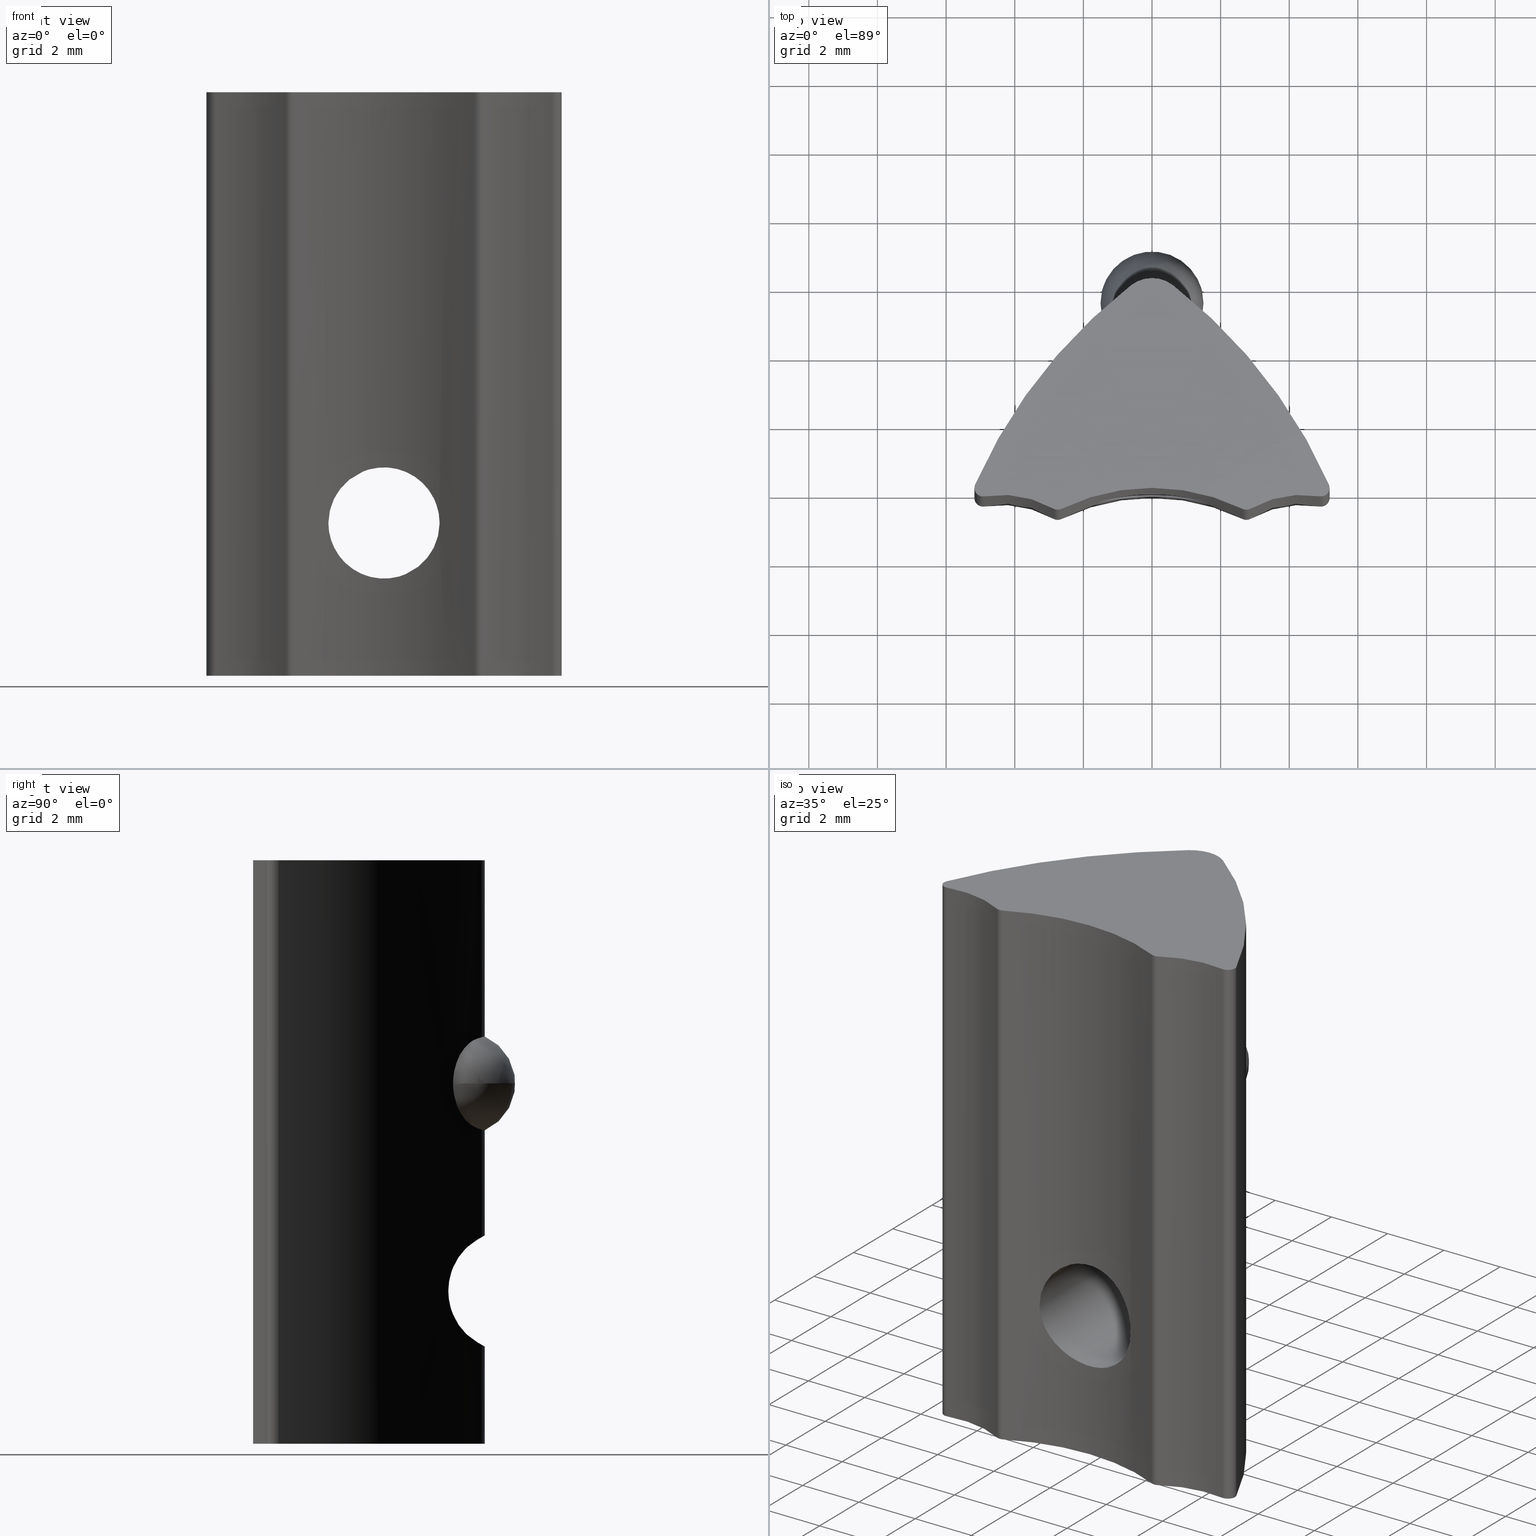
[diagram: canonical four-view strip — front | top / right | iso, engineering-drawing reading convention]
A machine part, canonical four-view strip (front | top / right | iso — engineering-drawing reading convention). The complete STEP part file that produces these views, byte-faithful:
ISO-10303-21;
HEADER;
/* Generated by software containing ST-Developer
 * from STEP Tools, Inc. (www.steptools.com) 
 */

FILE_DESCRIPTION(
/* description */ ('CURSORE M4 17X10 CAVA6 CULLA CON SFERETTA'),
/* implementation_level */ '2;1');

FILE_NAME(
/* name */ 
'C:\\Users\\tecnico7\\Desktop\\NUOVI DISEGNI 3D\\CDDCU0000055.stp',
/* time_stamp */ '2022-11-28T09:18:04+01:00',
/* author */ ('tecnico7'),
/* organization */ (''),
/* preprocessor_version */ 'ST-DEVELOPER v18.1',
/* originating_system */ 'Autodesk Inventor 2022',
/* authorisation */ '');

FILE_SCHEMA (('AUTOMOTIVE_DESIGN { 1 0 10303 214 3 1 1 }'));
ENDSEC;

DATA;
#10=MECHANICAL_DESIGN_GEOMETRIC_PRESENTATION_REPRESENTATION('',(#312,#313),
#732);
#11=SHAPE_REPRESENTATION_RELATIONSHIP('SRR','None',#739,#12);
#12=ADVANCED_BREP_SHAPE_REPRESENTATION('',(#13),#731);
#13=MANIFOLD_SOLID_BREP('Solido1',#330);
#14=PLANE('',#388);
#15=PLANE('',#389);
#16=LINE('',#549,#31);
#17=LINE('',#573,#32);
#18=LINE('',#577,#33);
#19=LINE('',#580,#34);
#20=LINE('',#583,#35);
#21=LINE('',#610,#36);
#22=LINE('',#676,#37);
#23=LINE('',#680,#38);
#24=LINE('',#683,#39);
#25=LINE('',#693,#40);
#26=LINE('',#696,#41);
#27=LINE('',#702,#42);
#28=LINE('',#711,#43);
#29=LINE('',#717,#44);
#30=LINE('',#723,#45);
#31=VECTOR('',#398,10.);
#32=VECTOR('',#399,10.);
#33=VECTOR('',#402,10.);
#34=VECTOR('',#405,10.);
#35=VECTOR('',#408,10.);
#36=VECTOR('',#411,1.621);
#37=VECTOR('',#414,10.);
#38=VECTOR('',#417,10.);
#39=VECTOR('',#420,10.);
#40=VECTOR('',#433,10.);
#41=VECTOR('',#436,10.);
#42=VECTOR('',#443,10.);
#43=VECTOR('',#456,10.);
#44=VECTOR('',#463,10.);
#45=VECTOR('',#470,10.);
#46=CYLINDRICAL_SURFACE('',#355,15.);
#47=CYLINDRICAL_SURFACE('',#358,1.);
#48=CYLINDRICAL_SURFACE('',#359,1.621);
#49=CYLINDRICAL_SURFACE('',#360,15.);
#50=CYLINDRICAL_SURFACE('',#363,1.);
#51=CYLINDRICAL_SURFACE('',#365,1.);
#52=CYLINDRICAL_SURFACE('',#367,0.25);
#53=CYLINDRICAL_SURFACE('',#370,3.);
#54=CYLINDRICAL_SURFACE('',#373,0.25);
#55=CYLINDRICAL_SURFACE('',#376,0.25);
#56=CYLINDRICAL_SURFACE('',#379,3.);
#57=CYLINDRICAL_SURFACE('',#382,0.25);
#58=CYLINDRICAL_SURFACE('',#385,6.);
#59=FACE_BOUND('',#91,.T.);
#60=FACE_BOUND('',#105,.T.);
#61=B_SPLINE_CURVE_WITH_KNOTS('',3,(#488,#489,#490,#491,#492,#493,#494,
#495,#496,#497,#498,#499,#500,#501,#502,#503,#504,#505),.UNSPECIFIED.,.F.,
 .F.,(4,2,2,2,2,2,2,2,4),(0.224927419825382,0.268885237807746,0.310193641972786,
0.356110090594978,0.402026539217171,0.447942987839363,0.493859436461555,
0.535167840626594,0.579125658608959),.UNSPECIFIED.);
#62=B_SPLINE_CURVE_WITH_KNOTS('',3,(#507,#508,#509,#510,#511,#512,#513,
#514,#515,#516),.UNSPECIFIED.,.F.,.F.,(4,2,2,2,4),(0.184780951995085,0.197914113345664,
0.236162461852627,0.273970569130265,0.311778676407902),.UNSPECIFIED.);
#63=B_SPLINE_CURVE_WITH_KNOTS('',3,(#518,#519,#520,#521,#522,#523,#524,
#525,#526,#527,#528,#529,#530,#531,#532,#533,#534,#535,#536),
 .UNSPECIFIED.,.F.,.F.,(4,2,2,2,3,2,2,2,4),(-0.177099119391789,-0.133141301409424,
-0.0918328972443856,-0.0459164486221928,0.,0.045916448622193,0.091832897244386,
0.133141301409424,0.177099119391789),.UNSPECIFIED.);
#64=B_SPLINE_CURVE_WITH_KNOTS('',3,(#537,#538,#539,#540,#541,#542,#543,
#544,#545,#546),.UNSPECIFIED.,.F.,.F.,(4,2,2,2,4),(0.314556690148757,0.352364797426395,
0.390172904704032,0.428421253210995,0.441554414561574),.UNSPECIFIED.);
#65=B_SPLINE_CURVE_WITH_KNOTS('',3,(#551,#552,#553,#554,#555,#556,#557,
#558,#559,#560,#561,#562,#563,#564,#565,#566,#567,#568,#569,#570,#571),
 .UNSPECIFIED.,.F.,.F.,(4,2,2,2,3,2,2,2,2,4),(-0.205344797727796,-0.200723709947894,
-0.122364503423857,-0.0611822517119287,0.,0.0328929540431599,0.0657859080863197,
0.131571816172639,0.205415509235039,0.205763545672511),.UNSPECIFIED.);
#66=B_SPLINE_CURVE_WITH_KNOTS('',3,(#585,#586,#587,#588,#589,#590),
 .UNSPECIFIED.,.F.,.F.,(4,2,4),(0.0912880722624588,0.116987272487438,0.155790089731869),
 .UNSPECIFIED.);
#67=B_SPLINE_CURVE_WITH_KNOTS('',3,(#591,#592,#593,#594,#595,#596),
 .UNSPECIFIED.,.F.,.F.,(4,2,4),(0.155790089731869,0.1945929069763,0.220292107201279),
 .UNSPECIFIED.);
#68=B_SPLINE_CURVE_WITH_KNOTS('',3,(#599,#600,#601,#602,#603,#604,#605,
#606,#607,#608),.UNSPECIFIED.,.F.,.F.,(4,2,2,2,4),(0.545481501043431,0.60666375275536,
0.667846004467288,0.746205210991325,0.750826298771228),.UNSPECIFIED.);
#69=B_SPLINE_CURVE_WITH_KNOTS('',3,(#612,#613,#614,#615,#616,#617,#618,
#619,#620,#621,#622,#623,#624,#625,#626,#627,#628,#629),.UNSPECIFIED.,.F.,
 .F.,(4,2,2,2,2,2,2,2,4),(0.,0.0613970513798135,0.122794102759627,0.184179325210304,
0.245564547660981,0.306949770111658,0.368334992562336,0.429732043942149,
0.491129095321963),.UNSPECIFIED.);
#70=B_SPLINE_CURVE_WITH_KNOTS('',3,(#630,#631,#632,#633,#634,#635,#636,
#637,#638,#639,#640,#641,#642,#643,#644,#645,#646,#647),.UNSPECIFIED.,.F.,
 .F.,(4,2,2,2,2,2,2,2,4),(0.491129095321963,0.552526146701776,0.61392319808159,
0.675308420532267,0.736693642982944,0.798078865433621,0.859464087884298,
0.920861139264112,0.982258190643925),.UNSPECIFIED.);
#71=B_SPLINE_CURVE_WITH_KNOTS('',3,(#649,#650,#651,#652,#653,#654,#655,
#656,#657,#658,#659,#660),.UNSPECIFIED.,.F.,.F.,(4,2,2,2,2,4),(0.33971795537092,
0.340065991808392,0.413909684870792,0.479695592957111,0.512588547000271,
0.545481501043431),.UNSPECIFIED.);
#72=B_SPLINE_CURVE_WITH_KNOTS('',3,(#662,#663,#664,#665,#666,#667),
 .UNSPECIFIED.,.F.,.F.,(4,2,4),(0.467370269195606,0.506173086440037,0.531872286665016),
 .UNSPECIFIED.);
#73=B_SPLINE_CURVE_WITH_KNOTS('',3,(#668,#669,#670,#671,#672,#673),
 .UNSPECIFIED.,.F.,.F.,(4,2,4),(0.402868251726196,0.428567451951175,0.467370269195606),
 .UNSPECIFIED.);
#74=FACE_OUTER_BOUND('',#90,.T.);
#75=FACE_OUTER_BOUND('',#92,.T.);
#76=FACE_OUTER_BOUND('',#93,.T.);
#77=FACE_OUTER_BOUND('',#94,.T.);
#78=FACE_OUTER_BOUND('',#95,.T.);
#79=FACE_OUTER_BOUND('',#96,.T.);
#80=FACE_OUTER_BOUND('',#97,.T.);
#81=FACE_OUTER_BOUND('',#98,.T.);
#82=FACE_OUTER_BOUND('',#99,.T.);
#83=FACE_OUTER_BOUND('',#100,.T.);
#84=FACE_OUTER_BOUND('',#101,.T.);
#85=FACE_OUTER_BOUND('',#102,.T.);
#86=FACE_OUTER_BOUND('',#103,.T.);
#87=FACE_OUTER_BOUND('',#104,.T.);
#88=FACE_OUTER_BOUND('',#106,.T.);
#89=FACE_OUTER_BOUND('',#107,.T.);
#90=EDGE_LOOP('',(#213,#214));
#91=EDGE_LOOP('',(#215,#216,#217,#218));
#92=EDGE_LOOP('',(#219,#220,#221,#222,#223,#224,#225,#226));
#93=EDGE_LOOP('',(#227,#228,#229,#230,#231));
#94=EDGE_LOOP('',(#232,#233,#234,#235,#236,#237,#238,#239,#240,#241,#242));
#95=EDGE_LOOP('',(#243,#244,#245,#246,#247,#248,#249,#250,#251));
#96=EDGE_LOOP('',(#252,#253,#254,#255));
#97=EDGE_LOOP('',(#256,#257,#258,#259,#260));
#98=EDGE_LOOP('',(#261,#262,#263,#264));
#99=EDGE_LOOP('',(#265,#266,#267,#268));
#100=EDGE_LOOP('',(#269,#270,#271,#272));
#101=EDGE_LOOP('',(#273,#274,#275,#276));
#102=EDGE_LOOP('',(#277,#278,#279,#280));
#103=EDGE_LOOP('',(#281,#282,#283,#284));
#104=EDGE_LOOP('',(#285,#286,#287,#288));
#105=EDGE_LOOP('',(#289,#290));
#106=EDGE_LOOP('',(#291,#292,#293,#294,#295,#296,#297,#298,#299,#300));
#107=EDGE_LOOP('',(#301,#302,#303,#304,#305,#306,#307,#308,#309,#310));
#108=CIRCLE('',#354,1.5);
#109=CIRCLE('',#356,15.);
#110=CIRCLE('',#357,15.);
#111=CIRCLE('',#361,15.);
#112=CIRCLE('',#362,15.);
#113=CIRCLE('',#364,1.);
#114=CIRCLE('',#366,1.);
#115=CIRCLE('',#368,0.25);
#116=CIRCLE('',#369,0.25);
#117=CIRCLE('',#371,3.);
#118=CIRCLE('',#372,3.);
#119=CIRCLE('',#374,0.25);
#120=CIRCLE('',#375,0.25);
#121=CIRCLE('',#377,0.25);
#122=CIRCLE('',#378,0.25);
#123=CIRCLE('',#380,3.);
#124=CIRCLE('',#381,3.);
#125=CIRCLE('',#383,0.25);
#126=CIRCLE('',#384,0.25);
#127=CIRCLE('',#386,6.);
#128=CIRCLE('',#387,6.);
#129=VERTEX_POINT('',#483);
#130=VERTEX_POINT('',#484);
#131=VERTEX_POINT('',#486);
#132=VERTEX_POINT('',#487);
#133=VERTEX_POINT('',#506);
#134=VERTEX_POINT('',#517);
#135=VERTEX_POINT('',#548);
#136=VERTEX_POINT('',#550);
#137=VERTEX_POINT('',#572);
#138=VERTEX_POINT('',#574);
#139=VERTEX_POINT('',#576);
#140=VERTEX_POINT('',#578);
#141=VERTEX_POINT('',#582);
#142=VERTEX_POINT('',#584);
#143=VERTEX_POINT('',#598);
#144=VERTEX_POINT('',#609);
#145=VERTEX_POINT('',#611);
#146=VERTEX_POINT('',#648);
#147=VERTEX_POINT('',#661);
#148=VERTEX_POINT('',#675);
#149=VERTEX_POINT('',#677);
#150=VERTEX_POINT('',#679);
#151=VERTEX_POINT('',#681);
#152=VERTEX_POINT('',#689);
#153=VERTEX_POINT('',#690);
#154=VERTEX_POINT('',#692);
#155=VERTEX_POINT('',#694);
#156=VERTEX_POINT('',#698);
#157=VERTEX_POINT('',#700);
#158=VERTEX_POINT('',#707);
#159=VERTEX_POINT('',#709);
#160=VERTEX_POINT('',#713);
#161=VERTEX_POINT('',#715);
#162=VERTEX_POINT('',#719);
#163=VERTEX_POINT('',#721);
#164=EDGE_CURVE('',#129,#130,#108,.T.);
#165=EDGE_CURVE('',#131,#132,#61,.T.);
#166=EDGE_CURVE('',#133,#131,#62,.T.);
#167=EDGE_CURVE('',#134,#133,#63,.T.);
#168=EDGE_CURVE('',#132,#134,#64,.T.);
#169=EDGE_CURVE('',#135,#133,#16,.T.);
#170=EDGE_CURVE('',#135,#136,#65,.T.);
#171=EDGE_CURVE('',#137,#136,#17,.T.);
#172=EDGE_CURVE('',#138,#137,#109,.T.);
#173=EDGE_CURVE('',#138,#139,#18,.T.);
#174=EDGE_CURVE('',#140,#139,#110,.T.);
#175=EDGE_CURVE('',#134,#140,#19,.T.);
#176=EDGE_CURVE('',#141,#131,#20,.T.);
#177=EDGE_CURVE('',#141,#142,#66,.T.);
#178=EDGE_CURVE('',#142,#135,#67,.T.);
#179=EDGE_CURVE('',#143,#141,#68,.T.);
#180=EDGE_CURVE('',#143,#144,#21,.T.);
#181=EDGE_CURVE('',#145,#144,#69,.T.);
#182=EDGE_CURVE('',#144,#145,#70,.T.);
#183=EDGE_CURVE('',#146,#143,#71,.T.);
#184=EDGE_CURVE('',#147,#146,#72,.T.);
#185=EDGE_CURVE('',#136,#147,#73,.T.);
#186=EDGE_CURVE('',#132,#148,#22,.T.);
#187=EDGE_CURVE('',#149,#148,#111,.T.);
#188=EDGE_CURVE('',#150,#149,#23,.T.);
#189=EDGE_CURVE('',#151,#150,#112,.T.);
#190=EDGE_CURVE('',#151,#146,#24,.T.);
#191=EDGE_CURVE('',#148,#140,#113,.T.);
#192=EDGE_CURVE('',#137,#151,#114,.T.);
#193=EDGE_CURVE('',#152,#153,#115,.T.);
#194=EDGE_CURVE('',#152,#154,#25,.T.);
#195=EDGE_CURVE('',#155,#154,#116,.T.);
#196=EDGE_CURVE('',#153,#155,#26,.T.);
#197=EDGE_CURVE('',#153,#156,#117,.T.);
#198=EDGE_CURVE('',#157,#155,#118,.T.);
#199=EDGE_CURVE('',#156,#157,#27,.T.);
#200=EDGE_CURVE('',#156,#138,#119,.T.);
#201=EDGE_CURVE('',#139,#157,#120,.T.);
#202=EDGE_CURVE('',#150,#158,#121,.T.);
#203=EDGE_CURVE('',#159,#149,#122,.T.);
#204=EDGE_CURVE('',#158,#159,#28,.T.);
#205=EDGE_CURVE('',#158,#160,#123,.T.);
#206=EDGE_CURVE('',#161,#159,#124,.T.);
#207=EDGE_CURVE('',#160,#161,#29,.T.);
#208=EDGE_CURVE('',#160,#162,#125,.T.);
#209=EDGE_CURVE('',#163,#161,#126,.T.);
#210=EDGE_CURVE('',#162,#163,#30,.T.);
#211=EDGE_CURVE('',#162,#152,#127,.T.);
#212=EDGE_CURVE('',#154,#163,#128,.T.);
#213=ORIENTED_EDGE('',*,*,#164,.T.);
#214=ORIENTED_EDGE('',*,*,#164,.F.);
#215=ORIENTED_EDGE('',*,*,#165,.F.);
#216=ORIENTED_EDGE('',*,*,#166,.F.);
#217=ORIENTED_EDGE('',*,*,#167,.F.);
#218=ORIENTED_EDGE('',*,*,#168,.F.);
#219=ORIENTED_EDGE('',*,*,#167,.T.);
#220=ORIENTED_EDGE('',*,*,#169,.F.);
#221=ORIENTED_EDGE('',*,*,#170,.T.);
#222=ORIENTED_EDGE('',*,*,#171,.F.);
#223=ORIENTED_EDGE('',*,*,#172,.F.);
#224=ORIENTED_EDGE('',*,*,#173,.T.);
#225=ORIENTED_EDGE('',*,*,#174,.F.);
#226=ORIENTED_EDGE('',*,*,#175,.F.);
#227=ORIENTED_EDGE('',*,*,#166,.T.);
#228=ORIENTED_EDGE('',*,*,#176,.F.);
#229=ORIENTED_EDGE('',*,*,#177,.T.);
#230=ORIENTED_EDGE('',*,*,#178,.T.);
#231=ORIENTED_EDGE('',*,*,#169,.T.);
#232=ORIENTED_EDGE('',*,*,#178,.F.);
#233=ORIENTED_EDGE('',*,*,#177,.F.);
#234=ORIENTED_EDGE('',*,*,#179,.F.);
#235=ORIENTED_EDGE('',*,*,#180,.T.);
#236=ORIENTED_EDGE('',*,*,#181,.F.);
#237=ORIENTED_EDGE('',*,*,#182,.F.);
#238=ORIENTED_EDGE('',*,*,#180,.F.);
#239=ORIENTED_EDGE('',*,*,#183,.F.);
#240=ORIENTED_EDGE('',*,*,#184,.F.);
#241=ORIENTED_EDGE('',*,*,#185,.F.);
#242=ORIENTED_EDGE('',*,*,#170,.F.);
#243=ORIENTED_EDGE('',*,*,#165,.T.);
#244=ORIENTED_EDGE('',*,*,#186,.T.);
#245=ORIENTED_EDGE('',*,*,#187,.F.);
#246=ORIENTED_EDGE('',*,*,#188,.F.);
#247=ORIENTED_EDGE('',*,*,#189,.F.);
#248=ORIENTED_EDGE('',*,*,#190,.T.);
#249=ORIENTED_EDGE('',*,*,#183,.T.);
#250=ORIENTED_EDGE('',*,*,#179,.T.);
#251=ORIENTED_EDGE('',*,*,#176,.T.);
#252=ORIENTED_EDGE('',*,*,#168,.T.);
#253=ORIENTED_EDGE('',*,*,#175,.T.);
#254=ORIENTED_EDGE('',*,*,#191,.F.);
#255=ORIENTED_EDGE('',*,*,#186,.F.);
#256=ORIENTED_EDGE('',*,*,#185,.T.);
#257=ORIENTED_EDGE('',*,*,#184,.T.);
#258=ORIENTED_EDGE('',*,*,#190,.F.);
#259=ORIENTED_EDGE('',*,*,#192,.F.);
#260=ORIENTED_EDGE('',*,*,#171,.T.);
#261=ORIENTED_EDGE('',*,*,#193,.F.);
#262=ORIENTED_EDGE('',*,*,#194,.T.);
#263=ORIENTED_EDGE('',*,*,#195,.F.);
#264=ORIENTED_EDGE('',*,*,#196,.F.);
#265=ORIENTED_EDGE('',*,*,#197,.F.);
#266=ORIENTED_EDGE('',*,*,#196,.T.);
#267=ORIENTED_EDGE('',*,*,#198,.F.);
#268=ORIENTED_EDGE('',*,*,#199,.F.);
#269=ORIENTED_EDGE('',*,*,#200,.F.);
#270=ORIENTED_EDGE('',*,*,#199,.T.);
#271=ORIENTED_EDGE('',*,*,#201,.F.);
#272=ORIENTED_EDGE('',*,*,#173,.F.);
#273=ORIENTED_EDGE('',*,*,#202,.F.);
#274=ORIENTED_EDGE('',*,*,#188,.T.);
#275=ORIENTED_EDGE('',*,*,#203,.F.);
#276=ORIENTED_EDGE('',*,*,#204,.F.);
#277=ORIENTED_EDGE('',*,*,#205,.F.);
#278=ORIENTED_EDGE('',*,*,#204,.T.);
#279=ORIENTED_EDGE('',*,*,#206,.F.);
#280=ORIENTED_EDGE('',*,*,#207,.F.);
#281=ORIENTED_EDGE('',*,*,#208,.F.);
#282=ORIENTED_EDGE('',*,*,#207,.T.);
#283=ORIENTED_EDGE('',*,*,#209,.F.);
#284=ORIENTED_EDGE('',*,*,#210,.F.);
#285=ORIENTED_EDGE('',*,*,#211,.F.);
#286=ORIENTED_EDGE('',*,*,#210,.T.);
#287=ORIENTED_EDGE('',*,*,#212,.F.);
#288=ORIENTED_EDGE('',*,*,#194,.F.);
#289=ORIENTED_EDGE('',*,*,#181,.T.);
#290=ORIENTED_EDGE('',*,*,#182,.T.);
#291=ORIENTED_EDGE('',*,*,#211,.T.);
#292=ORIENTED_EDGE('',*,*,#193,.T.);
#293=ORIENTED_EDGE('',*,*,#197,.T.);
#294=ORIENTED_EDGE('',*,*,#200,.T.);
#295=ORIENTED_EDGE('',*,*,#172,.T.);
#296=ORIENTED_EDGE('',*,*,#192,.T.);
#297=ORIENTED_EDGE('',*,*,#189,.T.);
#298=ORIENTED_EDGE('',*,*,#202,.T.);
#299=ORIENTED_EDGE('',*,*,#205,.T.);
#300=ORIENTED_EDGE('',*,*,#208,.T.);
#301=ORIENTED_EDGE('',*,*,#212,.T.);
#302=ORIENTED_EDGE('',*,*,#209,.T.);
#303=ORIENTED_EDGE('',*,*,#206,.T.);
#304=ORIENTED_EDGE('',*,*,#203,.T.);
#305=ORIENTED_EDGE('',*,*,#187,.T.);
#306=ORIENTED_EDGE('',*,*,#191,.T.);
#307=ORIENTED_EDGE('',*,*,#174,.T.);
#308=ORIENTED_EDGE('',*,*,#201,.T.);
#309=ORIENTED_EDGE('',*,*,#198,.T.);
#310=ORIENTED_EDGE('',*,*,#195,.T.);
#311=SPHERICAL_SURFACE('',#353,1.5);
#312=STYLED_ITEM('',(#749),#314);
#313=STYLED_ITEM('',(#748),#13);
#314=ADVANCED_FACE('',(#74,#59),#311,.T.);
#315=ADVANCED_FACE('',(#75),#46,.T.);
#316=ADVANCED_FACE('',(#76),#47,.T.);
#317=ADVANCED_FACE('',(#77),#48,.F.);
#318=ADVANCED_FACE('',(#78),#49,.T.);
#319=ADVANCED_FACE('',(#79),#50,.T.);
#320=ADVANCED_FACE('',(#80),#51,.T.);
#321=ADVANCED_FACE('',(#81),#52,.T.);
#322=ADVANCED_FACE('',(#82),#53,.F.);
#323=ADVANCED_FACE('',(#83),#54,.T.);
#324=ADVANCED_FACE('',(#84),#55,.T.);
#325=ADVANCED_FACE('',(#85),#56,.F.);
#326=ADVANCED_FACE('',(#86),#57,.T.);
#327=ADVANCED_FACE('',(#87,#60),#58,.F.);
#328=ADVANCED_FACE('',(#88),#14,.F.);
#329=ADVANCED_FACE('',(#89),#15,.T.);
#330=CLOSED_SHELL('',(#314,#315,#316,#317,#318,#319,#320,#321,#322,#323,
#324,#325,#326,#327,#328,#329));
#331=DERIVED_UNIT_ELEMENT(#334,1.);
#332=DERIVED_UNIT_ELEMENT(#734,-3.);
#333=DIMENSIONAL_EXPONENTS(1.,0.,0.,0.,0.,0.,0.);
#334=(
CONVERSION_BASED_UNIT('gram',#336)
MASS_UNIT()
NAMED_UNIT(#333)
);
#335=(
MASS_UNIT()
NAMED_UNIT(*)
SI_UNIT(.KILO.,.GRAM.)
);
#336=MASS_MEASURE_WITH_UNIT(MASS_MEASURE(0.001),#335);
#337=DERIVED_UNIT((#331,#332));
#338=MEASURE_REPRESENTATION_ITEM('density measure',
POSITIVE_RATIO_MEASURE(7.87),#337);
#339=PROPERTY_DEFINITION_REPRESENTATION(#344,#341);
#340=PROPERTY_DEFINITION_REPRESENTATION(#345,#342);
#341=REPRESENTATION('material name',(#343),#731);
#342=REPRESENTATION('density',(#338),#731);
#343=DESCRIPTIVE_REPRESENTATION_ITEM('Acciaio 1 C40','Acciaio 1 C40');
#344=PROPERTY_DEFINITION('material property','material name',#741);
#345=PROPERTY_DEFINITION('material property','density of part',#741);
#346=DATE_TIME_ROLE('creation_date');
#347=APPLIED_DATE_AND_TIME_ASSIGNMENT(#348,#346,(#741));
#348=DATE_AND_TIME(#349,#350);
#349=CALENDAR_DATE(2017,18,7);
#350=LOCAL_TIME(0,0,0.,#351);
#351=COORDINATED_UNIVERSAL_TIME_OFFSET(0,0,.BEHIND.);
#352=AXIS2_PLACEMENT_3D('placement',#481,#390,#391);
#353=AXIS2_PLACEMENT_3D('',#482,#392,#393);
#354=AXIS2_PLACEMENT_3D('',#485,#394,#395);
#355=AXIS2_PLACEMENT_3D('',#547,#396,#397);
#356=AXIS2_PLACEMENT_3D('',#575,#400,#401);
#357=AXIS2_PLACEMENT_3D('',#579,#403,#404);
#358=AXIS2_PLACEMENT_3D('',#581,#406,#407);
#359=AXIS2_PLACEMENT_3D('',#597,#409,#410);
#360=AXIS2_PLACEMENT_3D('',#674,#412,#413);
#361=AXIS2_PLACEMENT_3D('',#678,#415,#416);
#362=AXIS2_PLACEMENT_3D('',#682,#418,#419);
#363=AXIS2_PLACEMENT_3D('',#684,#421,#422);
#364=AXIS2_PLACEMENT_3D('',#685,#423,#424);
#365=AXIS2_PLACEMENT_3D('',#686,#425,#426);
#366=AXIS2_PLACEMENT_3D('',#687,#427,#428);
#367=AXIS2_PLACEMENT_3D('',#688,#429,#430);
#368=AXIS2_PLACEMENT_3D('',#691,#431,#432);
#369=AXIS2_PLACEMENT_3D('',#695,#434,#435);
#370=AXIS2_PLACEMENT_3D('',#697,#437,#438);
#371=AXIS2_PLACEMENT_3D('',#699,#439,#440);
#372=AXIS2_PLACEMENT_3D('',#701,#441,#442);
#373=AXIS2_PLACEMENT_3D('',#703,#444,#445);
#374=AXIS2_PLACEMENT_3D('',#704,#446,#447);
#375=AXIS2_PLACEMENT_3D('',#705,#448,#449);
#376=AXIS2_PLACEMENT_3D('',#706,#450,#451);
#377=AXIS2_PLACEMENT_3D('',#708,#452,#453);
#378=AXIS2_PLACEMENT_3D('',#710,#454,#455);
#379=AXIS2_PLACEMENT_3D('',#712,#457,#458);
#380=AXIS2_PLACEMENT_3D('',#714,#459,#460);
#381=AXIS2_PLACEMENT_3D('',#716,#461,#462);
#382=AXIS2_PLACEMENT_3D('',#718,#464,#465);
#383=AXIS2_PLACEMENT_3D('',#720,#466,#467);
#384=AXIS2_PLACEMENT_3D('',#722,#468,#469);
#385=AXIS2_PLACEMENT_3D('',#724,#471,#472);
#386=AXIS2_PLACEMENT_3D('',#725,#473,#474);
#387=AXIS2_PLACEMENT_3D('',#726,#475,#476);
#388=AXIS2_PLACEMENT_3D('',#727,#477,#478);
#389=AXIS2_PLACEMENT_3D('',#728,#479,#480);
#390=DIRECTION('axis',(0.,0.,1.));
#391=DIRECTION('refdir',(1.,0.,0.));
#392=DIRECTION('center_axis',(1.,0.,0.));
#393=DIRECTION('ref_axis',(0.,-1.,0.));
#394=DIRECTION('center_axis',(0.,0.,1.));
#395=DIRECTION('ref_axis',(0.,1.,0.));
#396=DIRECTION('center_axis',(0.,0.,1.));
#397=DIRECTION('ref_axis',(0.61194185594615,-0.790902753150589,0.));
#398=DIRECTION('',(0.,0.,1.));
#399=DIRECTION('',(0.,0.,1.));
#400=DIRECTION('center_axis',(0.,0.,-1.));
#401=DIRECTION('ref_axis',(0.61194185594615,-0.790902753150589,0.));
#402=DIRECTION('',(0.,0.,1.));
#403=DIRECTION('center_axis',(0.,0.,1.));
#404=DIRECTION('ref_axis',(0.61194185594615,-0.790902753150589,0.));
#405=DIRECTION('',(0.,0.,1.));
#406=DIRECTION('center_axis',(0.,0.,1.));
#407=DIRECTION('ref_axis',(-0.61194185594615,-0.790902753150589,0.));
#408=DIRECTION('',(0.,0.,1.));
#409=DIRECTION('center_axis',(0.,1.,0.));
#410=DIRECTION('ref_axis',(-1.,0.,0.));
#411=DIRECTION('',(0.,-1.,0.));
#412=DIRECTION('center_axis',(0.,0.,1.));
#413=DIRECTION('ref_axis',(-0.914724473440414,-0.404078133148971,0.));
#414=DIRECTION('',(0.,0.,1.));
#415=DIRECTION('center_axis',(0.,0.,1.));
#416=DIRECTION('ref_axis',(-0.914724473440414,-0.404078133148971,0.));
#417=DIRECTION('',(0.,0.,1.));
#418=DIRECTION('center_axis',(0.,0.,-1.));
#419=DIRECTION('ref_axis',(-0.914724473440414,-0.404078133148971,0.));
#420=DIRECTION('',(0.,0.,1.));
#421=DIRECTION('center_axis',(0.,0.,1.));
#422=DIRECTION('ref_axis',(-0.61194185594615,-0.790902753150589,0.));
#423=DIRECTION('center_axis',(0.,0.,1.));
#424=DIRECTION('ref_axis',(-0.61194185594615,-0.790902753150589,0.));
#425=DIRECTION('center_axis',(0.,0.,1.));
#426=DIRECTION('ref_axis',(-0.61194185594615,-0.790902753150589,0.));
#427=DIRECTION('center_axis',(0.,0.,-1.));
#428=DIRECTION('ref_axis',(-0.61194185594615,-0.790902753150589,0.));
#429=DIRECTION('center_axis',(0.,0.,1.));
#430=DIRECTION('ref_axis',(0.499578080536772,0.866268862101827,0.));
#431=DIRECTION('center_axis',(0.,0.,-1.));
#432=DIRECTION('ref_axis',(0.499578080536772,0.866268862101827,0.));
#433=DIRECTION('',(0.,0.,1.));
#434=DIRECTION('center_axis',(0.,0.,1.));
#435=DIRECTION('ref_axis',(0.499578080536772,0.866268862101827,0.));
#436=DIRECTION('',(0.,0.,1.));
#437=DIRECTION('center_axis',(0.,0.,1.));
#438=DIRECTION('ref_axis',(0.499578080536772,0.866268862101827,0.));
#439=DIRECTION('center_axis',(0.,0.,1.));
#440=DIRECTION('ref_axis',(0.499578080536772,0.866268862101827,0.));
#441=DIRECTION('center_axis',(0.,0.,-1.));
#442=DIRECTION('ref_axis',(0.499578080536772,0.866268862101827,0.));
#443=DIRECTION('',(0.,0.,1.));
#444=DIRECTION('center_axis',(0.,0.,1.));
#445=DIRECTION('ref_axis',(0.914724473440414,-0.404078133148971,0.));
#446=DIRECTION('center_axis',(0.,0.,-1.));
#447=DIRECTION('ref_axis',(0.914724473440414,-0.404078133148971,0.));
#448=DIRECTION('center_axis',(0.,0.,1.));
#449=DIRECTION('ref_axis',(0.914724473440414,-0.404078133148971,0.));
#450=DIRECTION('center_axis',(0.,0.,1.));
#451=DIRECTION('ref_axis',(0.169652688694,0.985503914360008,0.));
#452=DIRECTION('center_axis',(0.,0.,-1.));
#453=DIRECTION('ref_axis',(0.169652688694,0.985503914360008,0.));
#454=DIRECTION('center_axis',(0.,0.,1.));
#455=DIRECTION('ref_axis',(0.169652688694,0.985503914360008,0.));
#456=DIRECTION('',(0.,0.,1.));
#457=DIRECTION('center_axis',(0.,0.,1.));
#458=DIRECTION('ref_axis',(0.169652688693997,0.985503914360008,0.));
#459=DIRECTION('center_axis',(0.,0.,1.));
#460=DIRECTION('ref_axis',(0.169652688693997,0.985503914360008,0.));
#461=DIRECTION('center_axis',(0.,0.,-1.));
#462=DIRECTION('ref_axis',(0.169652688693997,0.985503914360008,0.));
#463=DIRECTION('',(0.,0.,1.));
#464=DIRECTION('center_axis',(0.,0.,1.));
#465=DIRECTION('ref_axis',(0.440000000000006,0.897997772825743,0.));
#466=DIRECTION('center_axis',(0.,0.,-1.));
#467=DIRECTION('ref_axis',(0.440000000000006,0.897997772825743,0.));
#468=DIRECTION('center_axis',(0.,0.,1.));
#469=DIRECTION('ref_axis',(0.440000000000006,0.897997772825743,0.));
#470=DIRECTION('',(0.,0.,1.));
#471=DIRECTION('center_axis',(0.,0.,1.));
#472=DIRECTION('ref_axis',(0.44,0.897997772825746,0.));
#473=DIRECTION('center_axis',(0.,0.,1.));
#474=DIRECTION('ref_axis',(0.44,0.897997772825746,0.));
#475=DIRECTION('center_axis',(0.,0.,-1.));
#476=DIRECTION('ref_axis',(0.44,0.897997772825746,0.));
#477=DIRECTION('center_axis',(0.,0.,1.));
#478=DIRECTION('ref_axis',(1.,0.,0.));
#479=DIRECTION('center_axis',(0.,0.,1.));
#480=DIRECTION('ref_axis',(1.,0.,0.));
#481=CARTESIAN_POINT('',(0.,0.,0.));
#482=CARTESIAN_POINT('Origin',(0.,5.5,10.5));
#483=CARTESIAN_POINT('',(1.5,5.5,10.5));
#484=CARTESIAN_POINT('',(-1.5,5.5,10.5));
#485=CARTESIAN_POINT('Origin',(0.,5.5,10.5));
#486=CARTESIAN_POINT('',(0.611941855946153,5.9033888333115,9.19125838527967));
#487=CARTESIAN_POINT('',(0.611941855946153,5.9033888333115,11.8087416147203));
#488=CARTESIAN_POINT('Ctrl Pts',(0.611941855946152,5.9033888333115,9.19125838527967));
#489=CARTESIAN_POINT('Ctrl Pts',(0.734621195394697,5.80846866472019,9.2193639228349));
#490=CARTESIAN_POINT('Ctrl Pts',(0.855099179531908,5.71189845083683,9.27714501025726));
#491=CARTESIAN_POINT('Ctrl Pts',(1.04605820580299,5.55504918070396,9.41755293763258));
#492=CARTESIAN_POINT('Ctrl Pts',(1.14446349483087,5.47192128164891,9.52103385164395));
#493=CARTESIAN_POINT('Ctrl Pts',(1.29158328291991,5.34538174011869,9.7375489539689));
#494=CARTESIAN_POINT('Ctrl Pts',(1.35821350391953,5.28662061536966,9.87839385094758));
#495=CARTESIAN_POINT('Ctrl Pts',(1.44610736328998,5.20843811836978,10.1830866812942));
#496=CARTESIAN_POINT('Ctrl Pts',(1.46743244767338,5.18912701707077,10.3469451712594));
#497=CARTESIAN_POINT('Ctrl Pts',(1.46743244767338,5.18912701707077,10.6530548287406));
#498=CARTESIAN_POINT('Ctrl Pts',(1.44610736328998,5.20843811836978,10.8169133187058));
#499=CARTESIAN_POINT('Ctrl Pts',(1.35821350391953,5.28662061536966,11.1216061490524));
#500=CARTESIAN_POINT('Ctrl Pts',(1.29158328291991,5.34538174011869,11.2624510460311));
#501=CARTESIAN_POINT('Ctrl Pts',(1.14446349483087,5.47192128164891,11.478966148356));
#502=CARTESIAN_POINT('Ctrl Pts',(1.04605820580299,5.55504918070396,11.5824470623674));
#503=CARTESIAN_POINT('Ctrl Pts',(0.855099179531908,5.71189845083683,11.7228549897427));
#504=CARTESIAN_POINT('Ctrl Pts',(0.734621195394696,5.80846866472019,11.7806360771651));
#505=CARTESIAN_POINT('Ctrl Pts',(0.611941855946151,5.9033888333115,11.8087416147203));
#506=CARTESIAN_POINT('',(-0.611941855946148,5.9033888333115,9.19125838527967));
#507=CARTESIAN_POINT('Ctrl Pts',(-0.61194185594615,5.9033888333115,9.19125838527967));
#508=CARTESIAN_POINT('Ctrl Pts',(-0.575997218675293,5.93120012610978,9.18302355651987));
#509=CARTESIAN_POINT('Ctrl Pts',(-0.537824460660647,5.95679294074535,9.17552324665131));
#510=CARTESIAN_POINT('Ctrl Pts',(-0.382008148227603,6.04627426157639,9.14947393372953));
#511=CARTESIAN_POINT('Ctrl Pts',(-0.251146936935633,6.08878509591516,9.13746112967107));
#512=CARTESIAN_POINT('Ctrl Pts',(0.000237782953626479,6.12038633545528,
9.12850317204772));
#513=CARTESIAN_POINT('Ctrl Pts',(0.136549867702317,6.11202958140684,9.13083670730359));
#514=CARTESIAN_POINT('Ctrl Pts',(0.393361902751296,6.04146364842268,9.15095673610722));
#515=CARTESIAN_POINT('Ctrl Pts',(0.513863745726659,5.97927439643076,9.16878892935897));
#516=CARTESIAN_POINT('Ctrl Pts',(0.61194185594615,5.9033888333115,9.19125838527967));
#517=CARTESIAN_POINT('',(-0.611941855946148,5.9033888333115,11.8087416147203));
#518=CARTESIAN_POINT('Ctrl Pts',(-0.61194185594615,5.9033888333115,11.8087416147203));
#519=CARTESIAN_POINT('Ctrl Pts',(-0.734621195394697,5.80846866472018,11.7806360771651));
#520=CARTESIAN_POINT('Ctrl Pts',(-0.855099179531907,5.71189845083683,11.7228549897427));
#521=CARTESIAN_POINT('Ctrl Pts',(-1.04605820580299,5.55504918070396,11.5824470623674));
#522=CARTESIAN_POINT('Ctrl Pts',(-1.14446349483087,5.47192128164891,11.4789661483561));
#523=CARTESIAN_POINT('Ctrl Pts',(-1.29158328291991,5.34538174011869,11.2624510460311));
#524=CARTESIAN_POINT('Ctrl Pts',(-1.35821350391953,5.28662061536966,11.1216061490524));
#525=CARTESIAN_POINT('Ctrl Pts',(-1.44610736328997,5.20843811836978,10.8169133187058));
#526=CARTESIAN_POINT('Ctrl Pts',(-1.46743244767338,5.18912701707077,10.6530548287406));
#527=CARTESIAN_POINT('Ctrl Pts',(-1.46743244767338,5.18912701707077,10.5));
#528=CARTESIAN_POINT('Ctrl Pts',(-1.46743244767338,5.18912701707077,10.3469451712594));
#529=CARTESIAN_POINT('Ctrl Pts',(-1.44610736328997,5.20843811836977,10.1830866812942));
#530=CARTESIAN_POINT('Ctrl Pts',(-1.35821350391953,5.28662061536965,9.87839385094758));
#531=CARTESIAN_POINT('Ctrl Pts',(-1.29158328291991,5.34538174011869,9.73754895396889));
#532=CARTESIAN_POINT('Ctrl Pts',(-1.14446349483087,5.47192128164891,9.52103385164395));
#533=CARTESIAN_POINT('Ctrl Pts',(-1.04605820580299,5.55504918070396,9.41755293763258));
#534=CARTESIAN_POINT('Ctrl Pts',(-0.855099179531908,5.71189845083683,9.27714501025726));
#535=CARTESIAN_POINT('Ctrl Pts',(-0.734621195394696,5.80846866472018,9.2193639228349));
#536=CARTESIAN_POINT('Ctrl Pts',(-0.61194185594615,5.9033888333115,9.19125838527967));
#537=CARTESIAN_POINT('Ctrl Pts',(0.61194185594615,5.9033888333115,11.8087416147203));
#538=CARTESIAN_POINT('Ctrl Pts',(0.513863745726659,5.97927439643076,11.831211070641));
#539=CARTESIAN_POINT('Ctrl Pts',(0.393361902751296,6.04146364842269,11.8490432638928));
#540=CARTESIAN_POINT('Ctrl Pts',(0.136549867702316,6.11202958140684,11.8691632926964));
#541=CARTESIAN_POINT('Ctrl Pts',(0.00023778295362634,6.12038633545528,11.8714968279523));
#542=CARTESIAN_POINT('Ctrl Pts',(-0.251146936935633,6.08878509591516,11.8625388703289));
#543=CARTESIAN_POINT('Ctrl Pts',(-0.382008148227602,6.04627426157639,11.8505260662705));
#544=CARTESIAN_POINT('Ctrl Pts',(-0.537824460660646,5.95679294074536,11.8244767533487));
#545=CARTESIAN_POINT('Ctrl Pts',(-0.575997218675292,5.93120012610979,11.8169764434801));
#546=CARTESIAN_POINT('Ctrl Pts',(-0.61194185594615,5.9033888333115,11.8087416147203));
#547=CARTESIAN_POINT('Origin',(8.56718598324611,-5.96015246394733,0.));
#548=CARTESIAN_POINT('',(-0.611941855946148,5.9033888333115,5.95105568349118));
#549=CARTESIAN_POINT('',(-0.611941855946148,5.9033888333115,0.));
#550=CARTESIAN_POINT('',(-0.611941855946148,5.9033888333115,2.94894431650882));
#551=CARTESIAN_POINT('Ctrl Pts',(-0.61194185594615,5.9033888333115,5.95105568349118));
#552=CARTESIAN_POINT('Ctrl Pts',(-0.624341776990051,5.89379469463015,5.94600055410415));
#553=CARTESIAN_POINT('Ctrl Pts',(-0.636687542908629,5.88421136933026,5.94078829637794));
#554=CARTESIAN_POINT('Ctrl Pts',(-0.857313499724576,5.71240239899615,5.84439772920654));
#555=CARTESIAN_POINT('Ctrl Pts',(-1.04798852234162,5.55455914822724,5.70720146269823));
#556=CARTESIAN_POINT('Ctrl Pts',(-1.31884862630636,5.32217022716868,5.40890004956287));
#557=CARTESIAN_POINT('Ctrl Pts',(-1.42891396661447,5.22414020431783,5.24192371103609));
#558=CARTESIAN_POINT('Ctrl Pts',(-1.58018093350836,5.08708073970153,4.86468802521359));
#559=CARTESIAN_POINT('Ctrl Pts',(-1.621,5.04897403958544,4.65394083903976));
#560=CARTESIAN_POINT('Ctrl Pts',(-1.621,5.04897403958544,4.45));
#561=CARTESIAN_POINT('Ctrl Pts',(-1.621,5.04897403958544,4.34035681985613));
#562=CARTESIAN_POINT('Ctrl Pts',(-1.60969949917613,5.0594650921467,4.22928361808961));
#563=CARTESIAN_POINT('Ctrl Pts',(-1.56482747844792,5.10073326609339,4.01273271930146));
#564=CARTESIAN_POINT('Ctrl Pts',(-1.53125298812605,5.13150447061578,3.90725451025946));
#565=CARTESIAN_POINT('Ctrl Pts',(-1.402926943307,5.24744054127964,3.60969819703543));
#566=CARTESIAN_POINT('Ctrl Pts',(-1.2791291713998,5.35711308740793,3.43668898679302));
#567=CARTESIAN_POINT('Ctrl Pts',(-0.997031648645768,5.59683986000626,3.15459146403898));
#568=CARTESIAN_POINT('Ctrl Pts',(-0.813457180100505,5.74739542189265,3.03153439854745));
#569=CARTESIAN_POINT('Ctrl Pts',(-0.613815873278774,5.90193868024567,2.94970932876077));
#570=CARTESIAN_POINT('Ctrl Pts',(-0.612879024848732,5.90266372156382,2.94932637620446));
#571=CARTESIAN_POINT('Ctrl Pts',(-0.61194185594615,5.9033888333115,2.94894431650882));
#572=CARTESIAN_POINT('',(-0.611941855946148,5.9033888333115,0.));
#573=CARTESIAN_POINT('',(-0.611941855946148,5.9033888333115,0.));
#574=CARTESIAN_POINT('',(-5.1536811183601,0.101019533287241,0.));
#575=CARTESIAN_POINT('Origin',(8.56718598324611,-5.96015246394733,0.));
#576=CARTESIAN_POINT('',(-5.1536811183601,0.101019533287241,17.));
#577=CARTESIAN_POINT('',(-5.1536811183601,0.101019533287241,0.));
#578=CARTESIAN_POINT('',(-0.611941855946148,5.9033888333115,17.));
#579=CARTESIAN_POINT('Origin',(8.56718598324611,-5.96015246394733,17.));
#580=CARTESIAN_POINT('',(-0.611941855946148,5.9033888333115,0.));
#581=CARTESIAN_POINT('Origin',(3.9154830615245E-25,5.11248608016091,0.));
#582=CARTESIAN_POINT('',(0.611941855946153,5.9033888333115,5.95105568349118));
#583=CARTESIAN_POINT('',(0.611941855946153,5.9033888333115,0.));
#584=CARTESIAN_POINT('',(3.9154864511612E-25,6.11248608016091,6.071));
#585=CARTESIAN_POINT('Ctrl Pts',(0.61194185594615,5.9033888333115,5.95105568349118));
#586=CARTESIAN_POINT('Ctrl Pts',(0.545003942757337,5.95518042294341,5.97834455177264));
#587=CARTESIAN_POINT('Ctrl Pts',(0.469031431236967,6.00006112636557,6.00391828538764));
#588=CARTESIAN_POINT('Ctrl Pts',(0.264967094338512,6.08589701929864,6.05418764124347));
#589=CARTESIAN_POINT('Ctrl Pts',(0.129342724148104,6.11248608016091,6.071));
#590=CARTESIAN_POINT('Ctrl Pts',(1.56125112837913E-16,6.11248608016091,
6.071));
#591=CARTESIAN_POINT('Ctrl Pts',(1.38777878078145E-16,6.11248608016091,
6.071));
#592=CARTESIAN_POINT('Ctrl Pts',(-0.129342724148104,6.11248608016091,6.071));
#593=CARTESIAN_POINT('Ctrl Pts',(-0.264967094338512,6.08589701929864,6.05418764124347));
#594=CARTESIAN_POINT('Ctrl Pts',(-0.469031431236967,6.00006112636557,6.00391828538764));
#595=CARTESIAN_POINT('Ctrl Pts',(-0.545003942757336,5.95518042294341,5.97834455177264));
#596=CARTESIAN_POINT('Ctrl Pts',(-0.611941855946151,5.9033888333115,5.95105568349118));
#597=CARTESIAN_POINT('Origin',(2.22044604925031E-15,-14.9038171152158,4.45));
#598=CARTESIAN_POINT('',(1.621,5.04897403958544,4.45));
#599=CARTESIAN_POINT('Ctrl Pts',(1.621,5.04897403958544,4.45));
#600=CARTESIAN_POINT('Ctrl Pts',(1.621,5.04897403958544,4.65394083903976));
#601=CARTESIAN_POINT('Ctrl Pts',(1.58018093350837,5.08708073970153,4.86468802521358));
#602=CARTESIAN_POINT('Ctrl Pts',(1.42891396661448,5.22414020431783,5.24192371103609));
#603=CARTESIAN_POINT('Ctrl Pts',(1.31884862630637,5.32217022716868,5.40890004956287));
#604=CARTESIAN_POINT('Ctrl Pts',(1.04798852234162,5.55455914822724,5.70720146269823));
#605=CARTESIAN_POINT('Ctrl Pts',(0.857313499724582,5.71240239899615,5.84439772920654));
#606=CARTESIAN_POINT('Ctrl Pts',(0.636687542908632,5.88421136933027,5.94078829637794));
#607=CARTESIAN_POINT('Ctrl Pts',(0.624341776990054,5.89379469463015,5.94600055410415));
#608=CARTESIAN_POINT('Ctrl Pts',(0.611941855946152,5.9033888333115,5.95105568349118));
#609=CARTESIAN_POINT('',(1.621,-0.223118574871042,4.45));
#610=CARTESIAN_POINT('',(1.621,-14.9038171152158,4.45));
#611=CARTESIAN_POINT('',(-1.621,-0.22311857487104,4.45));
#612=CARTESIAN_POINT('Ctrl Pts',(-1.621,-0.22311857487104,4.45));
#613=CARTESIAN_POINT('Ctrl Pts',(-1.621,-0.22311857487104,4.65465683793271));
#614=CARTESIAN_POINT('Ctrl Pts',(-1.57989022002291,-0.211108067963335,4.87221495807274));
#615=CARTESIAN_POINT('Ctrl Pts',(-1.41415632270945,-0.168406344078032,5.27126777198538));
#616=CARTESIAN_POINT('Ctrl Pts',(-1.28958314456802,-0.138404076550138,5.45285704003876));
#617=CARTESIAN_POINT('Ctrl Pts',(-1.00288466076888,-0.0826065201824645,
5.73955552383791));
#618=CARTESIAN_POINT('Ctrl Pts',(-0.82128399497515,-0.0530895641017987,
5.86415018379143));
#619=CARTESIAN_POINT('Ctrl Pts',(-0.422190385607472,-0.011510506912383,
6.02989982661833));
#620=CARTESIAN_POINT('Ctrl Pts',(-0.204617408168922,7.23386796671252E-17,
6.071));
#621=CARTESIAN_POINT('Ctrl Pts',(0.204617408168926,-7.23386796671252E-17,
6.071));
#622=CARTESIAN_POINT('Ctrl Pts',(0.422190385607476,-0.0115105069123828,
6.02989982661833));
#623=CARTESIAN_POINT('Ctrl Pts',(0.821283994975155,-0.0530895641017988,
5.86415018379143));
#624=CARTESIAN_POINT('Ctrl Pts',(1.00288466076888,-0.0826065201824655,5.73955552383791));
#625=CARTESIAN_POINT('Ctrl Pts',(1.28958314456803,-0.138404076550139,5.45285704003876));
#626=CARTESIAN_POINT('Ctrl Pts',(1.41415632270946,-0.168406344078033,5.27126777198538));
#627=CARTESIAN_POINT('Ctrl Pts',(1.57989022002291,-0.211108067963336,4.87221495807274));
#628=CARTESIAN_POINT('Ctrl Pts',(1.621,-0.223118574871041,4.65465683793271));
#629=CARTESIAN_POINT('Ctrl Pts',(1.621,-0.223118574871041,4.45));
#630=CARTESIAN_POINT('Ctrl Pts',(1.621,-0.223118574871041,4.45));
#631=CARTESIAN_POINT('Ctrl Pts',(1.621,-0.223118574871041,4.24534316206729));
#632=CARTESIAN_POINT('Ctrl Pts',(1.57989022002291,-0.211108067963336,4.02778504192726));
#633=CARTESIAN_POINT('Ctrl Pts',(1.41415632270946,-0.168406344078033,3.62873222801462));
#634=CARTESIAN_POINT('Ctrl Pts',(1.28958314456803,-0.138404076550139,3.44714295996124));
#635=CARTESIAN_POINT('Ctrl Pts',(1.00288466076888,-0.0826065201824655,3.16044447616209));
#636=CARTESIAN_POINT('Ctrl Pts',(0.821283994975155,-0.0530895641017988,
3.03584981620857));
#637=CARTESIAN_POINT('Ctrl Pts',(0.422190385607476,-0.0115105069123828,
2.87010017338168));
#638=CARTESIAN_POINT('Ctrl Pts',(0.204617408168926,-8.58785713829746E-17,
2.829));
#639=CARTESIAN_POINT('Ctrl Pts',(-0.204617408168921,8.58785713829746E-17,
2.829));
#640=CARTESIAN_POINT('Ctrl Pts',(-0.422190385607471,-0.011510506912383,
2.87010017338168));
#641=CARTESIAN_POINT('Ctrl Pts',(-0.82128399497515,-0.0530895641017987,
3.03584981620857));
#642=CARTESIAN_POINT('Ctrl Pts',(-1.00288466076888,-0.0826065201824645,
3.16044447616209));
#643=CARTESIAN_POINT('Ctrl Pts',(-1.28958314456802,-0.138404076550138,3.44714295996124));
#644=CARTESIAN_POINT('Ctrl Pts',(-1.41415632270945,-0.168406344078032,3.62873222801462));
#645=CARTESIAN_POINT('Ctrl Pts',(-1.5798902200229,-0.211108067963335,4.02778504192726));
#646=CARTESIAN_POINT('Ctrl Pts',(-1.621,-0.22311857487104,4.24534316206729));
#647=CARTESIAN_POINT('Ctrl Pts',(-1.621,-0.22311857487104,4.45));
#648=CARTESIAN_POINT('',(0.611941855946153,5.9033888333115,2.94894431650882));
#649=CARTESIAN_POINT('Ctrl Pts',(0.611941855946152,5.9033888333115,2.94894431650882));
#650=CARTESIAN_POINT('Ctrl Pts',(0.612879024848736,5.90266372156382,2.94932637620446));
#651=CARTESIAN_POINT('Ctrl Pts',(0.613815873278777,5.90193868024567,2.94970932876077));
#652=CARTESIAN_POINT('Ctrl Pts',(0.81345718010051,5.74739542189265,3.03153439854745));
#653=CARTESIAN_POINT('Ctrl Pts',(0.997031648645772,5.59683986000626,3.15459146403898));
#654=CARTESIAN_POINT('Ctrl Pts',(1.27912917139981,5.35711308740793,3.43668898679302));
#655=CARTESIAN_POINT('Ctrl Pts',(1.402926943307,5.24744054127964,3.60969819703543));
#656=CARTESIAN_POINT('Ctrl Pts',(1.53125298812606,5.13150447061578,3.90725451025945));
#657=CARTESIAN_POINT('Ctrl Pts',(1.56482747844792,5.10073326609339,4.01273271930146));
#658=CARTESIAN_POINT('Ctrl Pts',(1.60969949917614,5.0594650921467,4.22928361808961));
#659=CARTESIAN_POINT('Ctrl Pts',(1.621,5.04897403958544,4.34035681985613));
#660=CARTESIAN_POINT('Ctrl Pts',(1.621,5.04897403958544,4.45));
#661=CARTESIAN_POINT('',(3.9154864511612E-25,6.11248608016091,2.829));
#662=CARTESIAN_POINT('Ctrl Pts',(0.,6.11248608016091,2.829));
#663=CARTESIAN_POINT('Ctrl Pts',(0.129342724148104,6.11248608016091,2.829));
#664=CARTESIAN_POINT('Ctrl Pts',(0.264967094338512,6.08589701929864,2.84581235875653));
#665=CARTESIAN_POINT('Ctrl Pts',(0.469031431236967,6.00006112636557,2.89608171461236));
#666=CARTESIAN_POINT('Ctrl Pts',(0.545003942757337,5.95518042294341,2.92165544822736));
#667=CARTESIAN_POINT('Ctrl Pts',(0.61194185594615,5.9033888333115,2.94894431650882));
#668=CARTESIAN_POINT('Ctrl Pts',(-0.611941855946151,5.9033888333115,2.94894431650882));
#669=CARTESIAN_POINT('Ctrl Pts',(-0.545003942757337,5.95518042294341,2.92165544822736));
#670=CARTESIAN_POINT('Ctrl Pts',(-0.469031431236967,6.00006112636557,2.89608171461236));
#671=CARTESIAN_POINT('Ctrl Pts',(-0.264967094338512,6.08589701929864,2.84581235875653));
#672=CARTESIAN_POINT('Ctrl Pts',(-0.129342724148104,6.11248608016091,2.829));
#673=CARTESIAN_POINT('Ctrl Pts',(1.04083408558608E-16,6.11248608016091,
2.829));
#674=CARTESIAN_POINT('Origin',(-8.5671859832461,-5.96015246394733,0.));
#675=CARTESIAN_POINT('',(0.611941855946153,5.9033888333115,17.));
#676=CARTESIAN_POINT('',(0.611941855946153,5.9033888333115,0.));
#677=CARTESIAN_POINT('',(5.1536811183601,0.101019533287243,17.));
#678=CARTESIAN_POINT('Origin',(-8.5671859832461,-5.96015246394733,17.));
#679=CARTESIAN_POINT('',(5.1536811183601,0.101019533287243,0.));
#680=CARTESIAN_POINT('',(5.1536811183601,0.101019533287243,0.));
#681=CARTESIAN_POINT('',(0.611941855946153,5.9033888333115,0.));
#682=CARTESIAN_POINT('Origin',(-8.5671859832461,-5.96015246394733,0.));
#683=CARTESIAN_POINT('',(0.611941855946153,5.9033888333115,0.));
#684=CARTESIAN_POINT('Origin',(3.9154830615245E-25,5.11248608016091,0.));
#685=CARTESIAN_POINT('Origin',(3.9154830615245E-25,5.11248608016091,17.));
#686=CARTESIAN_POINT('Origin',(3.9154830615245E-25,5.11248608016091,0.));
#687=CARTESIAN_POINT('Origin',(3.9154830615245E-25,5.11248608016091,0.));
#688=CARTESIAN_POINT('Origin',(-2.75,-0.387513919839087,0.));
#689=CARTESIAN_POINT('',(-2.64,-0.612013363045524,0.));
#690=CARTESIAN_POINT('',(-2.87489452013419,-0.604081135364544,0.));
#691=CARTESIAN_POINT('Origin',(-2.75,-0.387513919839087,0.));
#692=CARTESIAN_POINT('',(-2.64,-0.612013363045524,17.));
#693=CARTESIAN_POINT('',(-2.64,-0.612013363045524,0.));
#694=CARTESIAN_POINT('',(-2.87489452013419,-0.604081135364544,17.));
#695=CARTESIAN_POINT('Origin',(-2.75,-0.387513919839087,17.));
#696=CARTESIAN_POINT('',(-2.87489452013419,-0.604081135364544,0.));
#697=CARTESIAN_POINT('Origin',(-4.37362876174451,-3.20288772167003,0.));
#698=CARTESIAN_POINT('',(-4.8825868278265,-0.246375978590002,0.));
#699=CARTESIAN_POINT('Origin',(-4.37362876174451,-3.20288772167003,0.));
#700=CARTESIAN_POINT('',(-4.8825868278265,-0.246375978590002,17.));
#701=CARTESIAN_POINT('Origin',(-4.37362876174451,-3.20288772167003,17.));
#702=CARTESIAN_POINT('',(-4.8825868278265,-0.246375978590002,0.));
#703=CARTESIAN_POINT('Origin',(-4.925,0.,0.));
#704=CARTESIAN_POINT('Origin',(-4.925,0.,0.));
#705=CARTESIAN_POINT('Origin',(-4.925,0.,17.));
#706=CARTESIAN_POINT('Origin',(4.925,0.,0.));
#707=CARTESIAN_POINT('',(4.8825868278265,-0.246375978590002,0.));
#708=CARTESIAN_POINT('Origin',(4.925,0.,0.));
#709=CARTESIAN_POINT('',(4.8825868278265,-0.246375978590002,17.));
#710=CARTESIAN_POINT('Origin',(4.925,0.,17.));
#711=CARTESIAN_POINT('',(4.8825868278265,-0.246375978590002,0.));
#712=CARTESIAN_POINT('Origin',(4.37362876174451,-3.20288772167003,0.));
#713=CARTESIAN_POINT('',(2.87489452013419,-0.604081135364544,0.));
#714=CARTESIAN_POINT('Origin',(4.37362876174451,-3.20288772167003,0.));
#715=CARTESIAN_POINT('',(2.87489452013419,-0.604081135364544,17.));
#716=CARTESIAN_POINT('Origin',(4.37362876174451,-3.20288772167003,17.));
#717=CARTESIAN_POINT('',(2.87489452013419,-0.604081135364544,0.));
#718=CARTESIAN_POINT('Origin',(2.75,-0.387513919839088,0.));
#719=CARTESIAN_POINT('',(2.64,-0.612013363045523,0.));
#720=CARTESIAN_POINT('Origin',(2.75,-0.387513919839088,0.));
#721=CARTESIAN_POINT('',(2.64,-0.612013363045523,17.));
#722=CARTESIAN_POINT('Origin',(2.75,-0.387513919839088,17.));
#723=CARTESIAN_POINT('',(2.64,-0.612013363045523,0.));
#724=CARTESIAN_POINT('Origin',(0.,-6.,0.));
#725=CARTESIAN_POINT('Origin',(0.,-6.,0.));
#726=CARTESIAN_POINT('Origin',(0.,-6.,17.));
#727=CARTESIAN_POINT('Origin',(2.0921956826649E-15,1.92014880889303,0.));
#728=CARTESIAN_POINT('Origin',(2.0921956826649E-15,1.92014880889303,17.));
#729=UNCERTAINTY_MEASURE_WITH_UNIT(LENGTH_MEASURE(0.01),#733,
'DISTANCE_ACCURACY_VALUE',
'Maximum model space distance between geometric entities at asserted c
onnectivities');
#730=UNCERTAINTY_MEASURE_WITH_UNIT(LENGTH_MEASURE(0.01),#733,
'DISTANCE_ACCURACY_VALUE',
'Maximum model space distance between geometric entities at asserted c
onnectivities');
#731=(
GEOMETRIC_REPRESENTATION_CONTEXT(3)
GLOBAL_UNCERTAINTY_ASSIGNED_CONTEXT((#729))
GLOBAL_UNIT_ASSIGNED_CONTEXT((#733,#735,#736))
REPRESENTATION_CONTEXT('','3D')
);
#732=(
GEOMETRIC_REPRESENTATION_CONTEXT(3)
GLOBAL_UNCERTAINTY_ASSIGNED_CONTEXT((#730))
GLOBAL_UNIT_ASSIGNED_CONTEXT((#733,#735,#736))
REPRESENTATION_CONTEXT('','3D')
);
#733=(
LENGTH_UNIT()
NAMED_UNIT(*)
SI_UNIT(.MILLI.,.METRE.)
);
#734=(
LENGTH_UNIT()
NAMED_UNIT(*)
SI_UNIT(.CENTI.,.METRE.)
);
#735=(
NAMED_UNIT(*)
PLANE_ANGLE_UNIT()
SI_UNIT($,.RADIAN.)
);
#736=(
NAMED_UNIT(*)
SI_UNIT($,.STERADIAN.)
SOLID_ANGLE_UNIT()
);
#737=SHAPE_DEFINITION_REPRESENTATION(#738,#739);
#738=PRODUCT_DEFINITION_SHAPE('',$,#741);
#739=SHAPE_REPRESENTATION('',(#352),#731);
#740=PRODUCT_DEFINITION_CONTEXT('part definition',#745,'design');
#741=PRODUCT_DEFINITION('CDDCU0000055','CDDCU0000055',#742,#740);
#742=PRODUCT_DEFINITION_FORMATION('A',$,#747);
#743=PRODUCT_RELATED_PRODUCT_CATEGORY('CDDCU0000055','CDDCU0000055',(#747));
#744=APPLICATION_PROTOCOL_DEFINITION('international standard',
'automotive_design',2009,#745);
#745=APPLICATION_CONTEXT(
'Core Data for Automotive Mechanical Design Process');
#746=PRODUCT_CONTEXT('part definition',#745,'mechanical');
#747=PRODUCT('CDDCU0000055','CDDCU0000055',
'CURSORE M4 17X10 CAVA6 CULLA CON SFERETTA',(#746));
#748=PRESENTATION_STYLE_ASSIGNMENT((#750));
#749=PRESENTATION_STYLE_ASSIGNMENT((#751));
#750=SURFACE_STYLE_USAGE(.BOTH.,#756);
#751=SURFACE_STYLE_USAGE(.BOTH.,#757);
#752=SURFACE_STYLE_RENDERING_WITH_PROPERTIES($,#764,(#754));
#753=SURFACE_STYLE_RENDERING_WITH_PROPERTIES($,#765,(#755));
#754=SURFACE_STYLE_TRANSPARENT(0.);
#755=SURFACE_STYLE_TRANSPARENT(0.);
#756=SURFACE_SIDE_STYLE('',(#758,#752));
#757=SURFACE_SIDE_STYLE('',(#759,#753));
#758=SURFACE_STYLE_FILL_AREA(#760);
#759=SURFACE_STYLE_FILL_AREA(#761);
#760=FILL_AREA_STYLE('',(#762));
#761=FILL_AREA_STYLE('',(#763));
#762=FILL_AREA_STYLE_COLOUR('',#764);
#763=FILL_AREA_STYLE_COLOUR('',#765);
#764=COLOUR_RGB('',0.83921568627451,0.886274509803922,0.854901960784314);
#765=COLOUR_RGB('',0.745098039215686,0.737254901960784,0.729411764705882);
ENDSEC;
END-ISO-10303-21;
